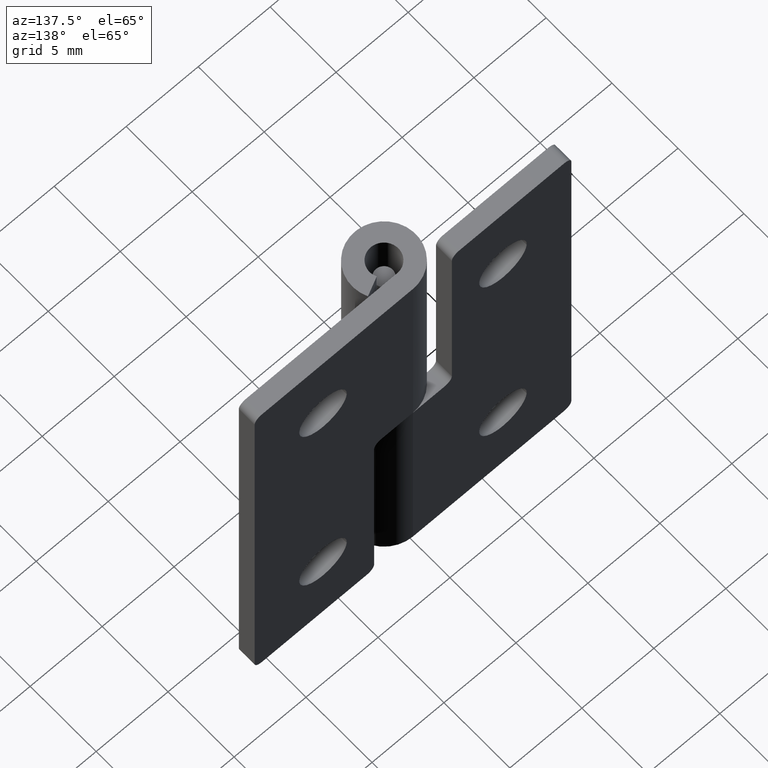
[diagram: clean part render]
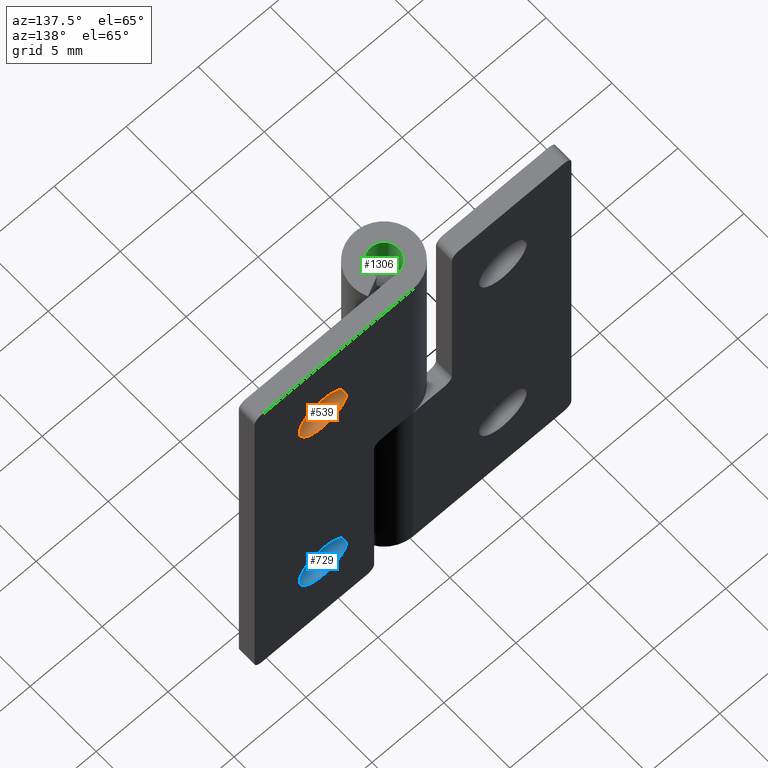
[diagram: same view with three faces highlighted in distinct colors, each labeled with its STEP entity id]
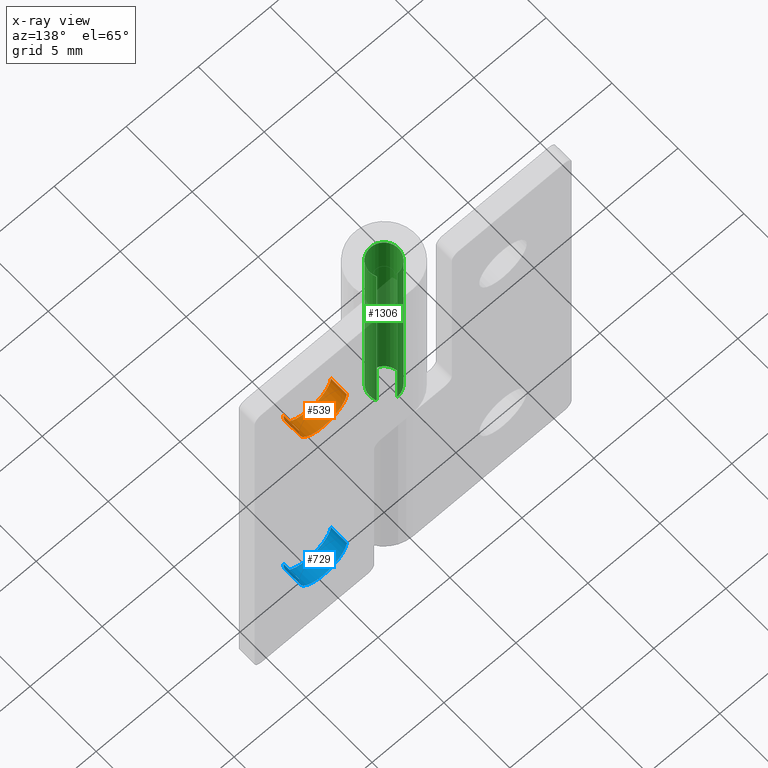
[diagram: x-ray of the same camera — body ghosted, the three highlighted faces saturated]
A machine part, auxiliary view with three faces highlighted in distinct colors.
The next image is the same camera in x-ray (body ghosted, the three faces saturated) — at least one of them is partly hidden behind the body in this view.
Their STEP definitions:

[orange] entity #539 — the highlighted face is a freeform B-spline surface patch.
#437=CARTESIAN_POINT('',(7.888465718500051,0.969999975000000,24.194756487183660));
#438=CARTESIAN_POINT('',(7.894039565490200,0.969999975000000,24.147864302252671));
#439=CARTESIAN_POINT('',(7.896922417396080,0.969999975000000,24.100730090232510));
#440=CARTESIAN_POINT('',(7.997652507628594,0.969999975000000,22.453807672836426));
#441=CARTESIAN_POINT('',(6.350730090232514,0.969999975000000,22.353077582603920));
#442=CARTESIAN_POINT('',(4.703807672836434,0.969999975000000,22.252347492371410));
#443=CARTESIAN_POINT('',(4.603077582603920,0.969999975000000,23.899269909767490));
#444=CARTESIAN_POINT('',(7.888465718500051,2.230751025625001,24.194756487183660));
#445=CARTESIAN_POINT('',(7.894039565490200,2.230751025625001,24.147864302252671));
#446=CARTESIAN_POINT('',(7.896922417396080,2.230751025625001,24.100730090232510));
#447=CARTESIAN_POINT('',(7.997652507628594,2.230751025625001,22.453807672836426));
#448=CARTESIAN_POINT('',(6.350730090232514,2.230751025625001,22.353077582603920));
#449=CARTESIAN_POINT('',(4.703807672836434,2.230751025625001,22.252347492371410));
#450=CARTESIAN_POINT('',(4.603077582603920,2.230751025625001,23.899269909767490));
#458=(BOUNDED_SURFACE()B_SPLINE_SURFACE(2,1,((#437,#444),(#438,#445),(#439,#446),(#440,#447),(#441,#448),(#442,#449),(#443,#450)),.UNSPECIFIED.,.F.,.F.,.U.)B_SPLINE_SURFACE_WITH_KNOTS((3,2,2,3),(2,2),(3.078760800517997,3.141592653589793,4.712388980384690,6.283185307179586),(0.0,1.0),.UNSPECIFIED.)GEOMETRIC_REPRESENTATION_ITEM()RATIONAL_B_SPLINE_SURFACE(((0.977505800795127,0.977505800795127),(0.988284271247462,0.988284271247462),(1.0,1.0),(0.707106781186548,0.707106781186548),(1.0,1.0),(0.707106781186548,0.707106781186548),(1.0,1.0)))REPRESENTATION_ITEM('')SURFACE());
#459=CARTESIAN_POINT('',(7.888466044865377,2.200000999999871,24.194753741467419));
#460=VERTEX_POINT('',#459);
#461=CARTESIAN_POINT('',(6.250000000000000,2.200001000000000,22.350000000000001));
#462=VERTEX_POINT('',#461);
#463=CARTESIAN_POINT('',(7.888466044865377,2.200000999999871,24.194753741467423));
#464=CARTESIAN_POINT('',(7.900000000000000,2.200001000000000,24.097718410054195));
#465=CARTESIAN_POINT('',(7.900000000000000,2.200001000000000,24.0));
#466=CARTESIAN_POINT('',(7.900000000000000,2.200001000000000,22.350000000000001));
#467=CARTESIAN_POINT('',(6.250000000000000,2.200001000000000,22.350000000000001));
#475=(BOUNDED_CURVE()B_SPLINE_CURVE(2,(#463,#464,#465,#466,#467),.UNSPECIFIED.,.F.,.U.)B_SPLINE_CURVE_WITH_KNOTS((3,2,3),(0.229562756728777,0.250000000000000,0.500000000000000),.UNSPECIFIED.)CURVE()GEOMETRIC_REPRESENTATION_ITEM()RATIONAL_B_SPLINE_CURVE((0.956027309297968,0.976056280138472,1.0,0.707106781186548,1.0))REPRESENTATION_ITEM(''));
#476=EDGE_CURVE('',#460,#462,#475,.T.);
#477=ORIENTED_EDGE('',*,*,#476,.T.);
#478=CARTESIAN_POINT('',(4.603077582607618,2.200001000000000,23.899269909707009));
#479=VERTEX_POINT('',#478);
#480=CARTESIAN_POINT('',(6.250000000000000,2.200001000000000,22.350000000000001));
#481=CARTESIAN_POINT('',(4.697834989719819,2.200001000000000,22.350000000000001));
#482=CARTESIAN_POINT('',(4.603077582607618,2.200001000000000,23.899269909707009));
#490=(BOUNDED_CURVE()B_SPLINE_CURVE(2,(#480,#481,#482),.UNSPECIFIED.,.F.,.U.)B_SPLINE_CURVE_WITH_KNOTS((3,3),(0.500000000000000,0.739332962229295),.UNSPECIFIED.)CURVE()GEOMETRIC_REPRESENTATION_ITEM()RATIONAL_B_SPLINE_CURVE((1.0,0.719603993298013,0.976072041646040))REPRESENTATION_ITEM(''));
#491=EDGE_CURVE('',#462,#479,#490,.T.);
#492=ORIENTED_EDGE('',*,*,#491,.T.);
#493=CARTESIAN_POINT('',(4.603077582607618,1.0,23.899269909707009));
#494=VERTEX_POINT('',#493);
#495=CARTESIAN_POINT('',(4.603077582607618,1.0,23.899269909707009));
#496=CARTESIAN_POINT('',(4.603077582607618,2.200001000000000,23.899269909707009));
#497=QUASI_UNIFORM_CURVE('',1,(#495,#496),.UNSPECIFIED.,.F.,.U.);
#498=EDGE_CURVE('',#494,#479,#497,.T.);
#499=ORIENTED_EDGE('',*,*,#498,.F.);
#500=CARTESIAN_POINT('',(6.250000000000000,1.0,22.350000000000001));
#501=VERTEX_POINT('',#500);
#502=CARTESIAN_POINT('',(6.250000000000000,1.0,22.350000000000001));
#503=CARTESIAN_POINT('',(4.697834989719819,1.0,22.350000000000001));
#504=CARTESIAN_POINT('',(4.603077582607618,1.0,23.899269909707009));
#512=(BOUNDED_CURVE()B_SPLINE_CURVE(2,(#502,#503,#504),.UNSPECIFIED.,.F.,.U.)B_SPLINE_CURVE_WITH_KNOTS((3,3),(0.500000000000000,0.739332962229295),.UNSPECIFIED.)CURVE()GEOMETRIC_REPRESENTATION_ITEM()RATIONAL_B_SPLINE_CURVE((1.0,0.719603993298013,0.976072041646040))REPRESENTATION_ITEM(''));
#513=EDGE_CURVE('',#501,#494,#512,.T.);
#514=ORIENTED_EDGE('',*,*,#513,.F.);
#515=CARTESIAN_POINT('',(7.888466040848774,1.0,24.194753775259649));
#516=VERTEX_POINT('',#515);
#517=CARTESIAN_POINT('',(7.888466040848774,1.0,24.194753775259652));
#518=CARTESIAN_POINT('',(7.900000000000000,1.0,24.097718427128928));
#519=CARTESIAN_POINT('',(7.900000000000000,1.0,24.0));
#520=CARTESIAN_POINT('',(7.900000000000000,1.0,22.350000000000001));
#521=CARTESIAN_POINT('',(6.250000000000000,1.0,22.350000000000001));
#529=(BOUNDED_CURVE()B_SPLINE_CURVE(2,(#517,#518,#519,#520,#521),.UNSPECIFIED.,.F.,.U.)B_SPLINE_CURVE_WITH_KNOTS((3,2,3),(0.229562753243201,0.250000000000000,0.500000000000000),.UNSPECIFIED.)CURVE()GEOMETRIC_REPRESENTATION_ITEM()RATIONAL_B_SPLINE_CURVE((0.956027302466078,0.976056276054865,1.0,0.707106781186548,1.0))REPRESENTATION_ITEM(''));
#530=EDGE_CURVE('',#516,#501,#529,.T.);
#531=ORIENTED_EDGE('',*,*,#530,.F.);
#532=CARTESIAN_POINT('',(7.888466040848774,1.0,24.194753775259649));
#533=CARTESIAN_POINT('',(7.888466044865377,2.200000999999871,24.194753741467419));
#534=QUASI_UNIFORM_CURVE('',1,(#532,#533),.UNSPECIFIED.,.F.,.U.);
#535=EDGE_CURVE('',#516,#460,#534,.T.);
#536=ORIENTED_EDGE('',*,*,#535,.T.);
#537=EDGE_LOOP('',(#477,#492,#499,#514,#531,#536));
#538=FACE_OUTER_BOUND('',#537,.T.);
#539=ADVANCED_FACE('',(#538),#458,.F.);

[blue] entity #729 — the highlighted face is a freeform B-spline surface patch.
#627=CARTESIAN_POINT('',(7.888465718500051,0.969999975000000,6.194756487183653));
#628=CARTESIAN_POINT('',(7.894039565490200,0.969999975000000,6.147864302252665));
#629=CARTESIAN_POINT('',(7.896922417396080,0.969999975000000,6.100730090232514));
#630=CARTESIAN_POINT('',(7.997652507628594,0.969999975000000,4.453807672836434));
#631=CARTESIAN_POINT('',(6.350730090232514,0.969999975000000,4.353077582603920));
#632=CARTESIAN_POINT('',(4.703807672836434,0.969999975000000,4.252347492371406));
#633=CARTESIAN_POINT('',(4.603077582603920,0.969999975000000,5.899269909767486));
#634=CARTESIAN_POINT('',(7.888465718500051,2.230751025625001,6.194756487183653));
#635=CARTESIAN_POINT('',(7.894039565490200,2.230751025625000,6.147864302252665));
#636=CARTESIAN_POINT('',(7.896922417396080,2.230751025625000,6.100730090232514));
#637=CARTESIAN_POINT('',(7.997652507628594,2.230751025625000,4.453807672836434));
#638=CARTESIAN_POINT('',(6.350730090232514,2.230751025625000,4.353077582603920));
#639=CARTESIAN_POINT('',(4.703807672836434,2.230751025625000,4.252347492371406));
#640=CARTESIAN_POINT('',(4.603077582603920,2.230751025625000,5.899269909767486));
#648=(BOUNDED_SURFACE()B_SPLINE_SURFACE(2,1,((#627,#634),(#628,#635),(#629,#636),(#630,#637),(#631,#638),(#632,#639),(#633,#640)),.UNSPECIFIED.,.F.,.F.,.U.)B_SPLINE_SURFACE_WITH_KNOTS((3,2,2,3),(2,2),(3.078760800517997,3.141592653589793,4.712388980384690,6.283185307179586),(0.0,1.0),.UNSPECIFIED.)GEOMETRIC_REPRESENTATION_ITEM()RATIONAL_B_SPLINE_SURFACE(((0.977505800795127,0.977505800795127),(0.988284271247462,0.988284271247462),(1.0,1.0),(0.707106781186548,0.707106781186548),(1.0,1.0),(0.707106781186548,0.707106781186548),(1.0,1.0)))REPRESENTATION_ITEM('')SURFACE());
#649=CARTESIAN_POINT('',(7.888466044865377,2.200000999999872,6.194753741467430));
#650=VERTEX_POINT('',#649);
#651=CARTESIAN_POINT('',(6.250000000000000,2.200001000000000,4.350000000000000));
#652=VERTEX_POINT('',#651);
#653=CARTESIAN_POINT('',(7.888466044865377,2.200000999999872,6.194753741467430));
#654=CARTESIAN_POINT('',(7.900000000000000,2.200001000000000,6.097718410054206));
#655=CARTESIAN_POINT('',(7.900000000000000,2.200001000000000,6.0));
#656=CARTESIAN_POINT('',(7.900000000000000,2.200001000000000,4.350000000000000));
#657=CARTESIAN_POINT('',(6.250000000000000,2.200001000000000,4.350000000000000));
#665=(BOUNDED_CURVE()B_SPLINE_CURVE(2,(#653,#654,#655,#656,#657),.UNSPECIFIED.,.F.,.U.)B_SPLINE_CURVE_WITH_KNOTS((3,2,3),(0.229562756728776,0.250000000000000,0.500000000000000),.UNSPECIFIED.)CURVE()GEOMETRIC_REPRESENTATION_ITEM()RATIONAL_B_SPLINE_CURVE((0.956027309297966,0.976056280138471,1.0,0.707106781186548,1.0))REPRESENTATION_ITEM(''));
#666=EDGE_CURVE('',#650,#652,#665,.T.);
#667=ORIENTED_EDGE('',*,*,#666,.T.);
#668=CARTESIAN_POINT('',(4.603077582607618,2.200001000000000,5.899269909707009));
#669=VERTEX_POINT('',#668);
#670=CARTESIAN_POINT('',(6.250000000000000,2.200001000000000,4.350000000000000));
#671=CARTESIAN_POINT('',(4.697834989719819,2.200001000000000,4.350000000000001));
#672=CARTESIAN_POINT('',(4.603077582607618,2.200001000000000,5.899269909707009));
#680=(BOUNDED_CURVE()B_SPLINE_CURVE(2,(#670,#671,#672),.UNSPECIFIED.,.F.,.U.)B_SPLINE_CURVE_WITH_KNOTS((3,3),(0.500000000000000,0.739332962229295),.UNSPECIFIED.)CURVE()GEOMETRIC_REPRESENTATION_ITEM()RATIONAL_B_SPLINE_CURVE((1.0,0.719603993298013,0.976072041646040))REPRESENTATION_ITEM(''));
#681=EDGE_CURVE('',#652,#669,#680,.T.);
#682=ORIENTED_EDGE('',*,*,#681,.T.);
#683=CARTESIAN_POINT('',(4.603077582607618,1.0,5.899269909707008));
#684=VERTEX_POINT('',#683);
#685=CARTESIAN_POINT('',(4.603077582607618,1.0,5.899269909707008));
#686=CARTESIAN_POINT('',(4.603077582607618,2.200001000000000,5.899269909707009));
#687=QUASI_UNIFORM_CURVE('',1,(#685,#686),.UNSPECIFIED.,.F.,.U.);
#688=EDGE_CURVE('',#684,#669,#687,.T.);
#689=ORIENTED_EDGE('',*,*,#688,.F.);
#690=CARTESIAN_POINT('',(6.250000000000000,1.0,4.350000000000000));
#691=VERTEX_POINT('',#690);
#692=CARTESIAN_POINT('',(6.250000000000000,1.0,4.350000000000000));
#693=CARTESIAN_POINT('',(4.697834989719819,1.0,4.350000000000001));
#694=CARTESIAN_POINT('',(4.603077582607618,1.0,5.899269909707008));
#702=(BOUNDED_CURVE()B_SPLINE_CURVE(2,(#692,#693,#694),.UNSPECIFIED.,.F.,.U.)B_SPLINE_CURVE_WITH_KNOTS((3,3),(0.500000000000000,0.739332962229295),.UNSPECIFIED.)CURVE()GEOMETRIC_REPRESENTATION_ITEM()RATIONAL_B_SPLINE_CURVE((1.0,0.719603993298013,0.976072041646040))REPRESENTATION_ITEM(''));
#703=EDGE_CURVE('',#691,#684,#702,.T.);
#704=ORIENTED_EDGE('',*,*,#703,.F.);
#705=CARTESIAN_POINT('',(7.888466040848774,1.0,6.194753775259649));
#706=VERTEX_POINT('',#705);
#707=CARTESIAN_POINT('',(7.888466040848774,1.0,6.194753775259649));
#708=CARTESIAN_POINT('',(7.900000000000001,1.0,6.097718427128930));
#709=CARTESIAN_POINT('',(7.900000000000000,1.0,6.0));
#710=CARTESIAN_POINT('',(7.900000000000000,1.0,4.350000000000000));
#711=CARTESIAN_POINT('',(6.250000000000000,1.0,4.350000000000000));
#719=(BOUNDED_CURVE()B_SPLINE_CURVE(2,(#707,#708,#709,#710,#711),.UNSPECIFIED.,.F.,.U.)B_SPLINE_CURVE_WITH_KNOTS((3,2,3),(0.229562753243201,0.250000000000000,0.500000000000000),.UNSPECIFIED.)CURVE()GEOMETRIC_REPRESENTATION_ITEM()RATIONAL_B_SPLINE_CURVE((0.956027302466078,0.976056276054865,1.0,0.707106781186548,1.0))REPRESENTATION_ITEM(''));
#720=EDGE_CURVE('',#706,#691,#719,.T.);
#721=ORIENTED_EDGE('',*,*,#720,.F.);
#722=CARTESIAN_POINT('',(7.888466040848774,1.0,6.194753775259649));
#723=CARTESIAN_POINT('',(7.888466044865377,2.200000999999872,6.194753741467430));
#724=QUASI_UNIFORM_CURVE('',1,(#722,#723),.UNSPECIFIED.,.F.,.U.);
#725=EDGE_CURVE('',#706,#650,#724,.T.);
#726=ORIENTED_EDGE('',*,*,#725,.T.);
#727=EDGE_LOOP('',(#667,#682,#689,#704,#721,#726));
#728=FACE_OUTER_BOUND('',#727,.T.);
#729=ADVANCED_FACE('',(#728),#648,.F.);

[green] entity #1306 — the highlighted face is a freeform B-spline surface patch.
#919=CARTESIAN_POINT('',(0.0,1.0,15.0));
#920=VERTEX_POINT('',#919);
#926=CARTESIAN_POINT('',(0.901960674226565,0.431818181818183,15.0));
#927=VERTEX_POINT('',#926);
#928=CARTESIAN_POINT('',(0.0,1.0,15.0));
#929=CARTESIAN_POINT('',(-0.752128683310217,1.0,15.000000000000004));
#930=CARTESIAN_POINT('',(-0.960758583679233,0.277385911478351,15.0));
#931=CARTESIAN_POINT('',(-1.169388484048249,-0.445228177043299,15.000000000000004));
#932=CARTESIAN_POINT('',(-0.533001790889026,-0.846114112226649,15.0));
#933=CARTESIAN_POINT('',(0.103384902270197,-1.247000047410000,15.000000000000004));
#934=CARTESIAN_POINT('',(0.665064208508542,-0.746786179947719,15.0));
#935=CARTESIAN_POINT('',(1.226743514746886,-0.246572312485438,15.000000000000004));
#936=CARTESIAN_POINT('',(0.901960674226565,0.431818181818182,15.0));
#944=(BOUNDED_CURVE()B_SPLINE_CURVE(2,(#928,#929,#930,#931,#932,#933,#934,#935,#936),.UNSPECIFIED.,.F.,.U.)B_SPLINE_CURVE_WITH_KNOTS((3,2,2,2,3),(0.0,0.250000000000000,0.500000000000000,0.750000000000000,1.0),.UNSPECIFIED.)CURVE()GEOMETRIC_REPRESENTATION_ITEM()RATIONAL_B_SPLINE_CURVE((1.0,0.799182679829321,1.0,0.799182679829321,1.0,0.799182679829321,1.0,0.799182679829321,1.0))REPRESENTATION_ITEM(''));
#945=EDGE_CURVE('',#920,#927,#944,.T.);
#1156=CARTESIAN_POINT('',(0.0,1.0,30.0));
#1157=VERTEX_POINT('',#1156);
#1192=CARTESIAN_POINT('',(0.901960674226564,0.431818181818183,30.0));
#1193=VERTEX_POINT('',#1192);
#1199=CARTESIAN_POINT('',(0.901960674226564,0.431818181818184,30.0));
#1200=CARTESIAN_POINT('',(1.226743514746886,-0.246572312485437,30.000000000000004));
#1201=CARTESIAN_POINT('',(0.665064208508542,-0.746786179947719,30.0));
#1202=CARTESIAN_POINT('',(0.103384902270198,-1.247000047410000,30.000000000000004));
#1203=CARTESIAN_POINT('',(-0.533001790889025,-0.846114112226650,30.0));
#1204=CARTESIAN_POINT('',(-1.169388484048249,-0.445228177043300,30.000000000000004));
#1205=CARTESIAN_POINT('',(-0.960758583679233,0.277385911478350,30.0));
#1206=CARTESIAN_POINT('',(-0.752128683310216,1.0,30.000000000000004));
#1207=CARTESIAN_POINT('',(0.0,1.0,30.0));
#1215=(BOUNDED_CURVE()B_SPLINE_CURVE(2,(#1199,#1200,#1201,#1202,#1203,#1204,#1205,#1206,#1207),.UNSPECIFIED.,.F.,.U.)B_SPLINE_CURVE_WITH_KNOTS((3,2,2,2,3),(0.0,0.250000000000000,0.500000000000000,0.750000000000000,1.0),.UNSPECIFIED.)CURVE()GEOMETRIC_REPRESENTATION_ITEM()RATIONAL_B_SPLINE_CURVE((1.0,0.799182679829321,1.0,0.799182679829321,1.0,0.799182679829321,1.0,0.799182679829321,1.0))REPRESENTATION_ITEM(''));
#1216=EDGE_CURVE('',#1193,#1157,#1215,.T.);
#1227=CARTESIAN_POINT('',(0.901960674226565,0.431818181818183,15.0));
#1228=CARTESIAN_POINT('',(0.901960674226564,0.431818181818183,30.0));
#1229=QUASI_UNIFORM_CURVE('',1,(#1227,#1228),.UNSPECIFIED.,.F.,.U.);
#1230=EDGE_CURVE('',#927,#1193,#1229,.T.);
#1274=CARTESIAN_POINT('',(0.887010833178221,0.461748613235034,14.625000000000000));
#1275=CARTESIAN_POINT('',(0.887010833178221,0.461748613235034,30.384375000000009));
#1276=CARTESIAN_POINT('',(1.443848566364930,-0.607926719839773,14.624999999999998));
#1277=CARTESIAN_POINT('',(1.443848566364930,-0.607926719839773,30.384375000000006));
#1278=CARTESIAN_POINT('',(0.289588693907171,-0.957151183649238,14.625000000000000));
#1279=CARTESIAN_POINT('',(0.289588693907171,-0.957151183649238,30.384375000000009));
#1280=CARTESIAN_POINT('',(-0.864671178550588,-1.306375647458703,14.624999999999998));
#1281=CARTESIAN_POINT('',(-0.864671178550588,-1.306375647458703,30.384375000000006));
#1282=CARTESIAN_POINT('',(-0.994213627204956,-0.107420963875607,14.625000000000000));
#1283=CARTESIAN_POINT('',(-0.994213627204956,-0.107420963875607,30.384375000000009));
#1284=CARTESIAN_POINT('',(-1.123756075859323,1.091533719707489,14.624999999999998));
#1285=CARTESIAN_POINT('',(-1.123756075859323,1.091533719707489,30.384375000000006));
#1286=CARTESIAN_POINT('',(0.078459095727845,0.996917333733128,14.625000000000000));
#1287=CARTESIAN_POINT('',(0.078459095727845,0.996917333733128,30.384375000000009));
#1295=(BOUNDED_SURFACE()B_SPLINE_SURFACE(1,2,((#1274,#1276,#1278,#1280,#1282,#1284,#1286),(#1275,#1277,#1279,#1281,#1283,#1285,#1287)),.UNSPECIFIED.,.F.,.F.,.U.)B_SPLINE_SURFACE_WITH_KNOTS((2,2),(3,2,2,3),(0.0,15.759375000000009),(0.0,1.0,2.0,3.0),.UNSPECIFIED.)GEOMETRIC_REPRESENTATION_ITEM()RATIONAL_B_SPLINE_SURFACE(((1.0,0.638320090924328,1.0,0.638320090924328,1.0,0.638320090924328,1.0),(1.0,0.638320090924328,1.0,0.638320090924328,1.0,0.638320090924328,1.0)))REPRESENTATION_ITEM('')SURFACE());
#1296=ORIENTED_EDGE('',*,*,#945,.F.);
#1297=CARTESIAN_POINT('',(0.0,1.0,15.0));
#1298=CARTESIAN_POINT('',(0.0,1.0,30.0));
#1299=QUASI_UNIFORM_CURVE('',1,(#1297,#1298),.UNSPECIFIED.,.F.,.U.);
#1300=EDGE_CURVE('',#920,#1157,#1299,.T.);
#1301=ORIENTED_EDGE('',*,*,#1300,.T.);
#1302=ORIENTED_EDGE('',*,*,#1216,.F.);
#1303=ORIENTED_EDGE('',*,*,#1230,.F.);
#1304=EDGE_LOOP('',(#1296,#1301,#1302,#1303));
#1305=FACE_OUTER_BOUND('',#1304,.T.);
#1306=ADVANCED_FACE('',(#1305),#1295,.F.);